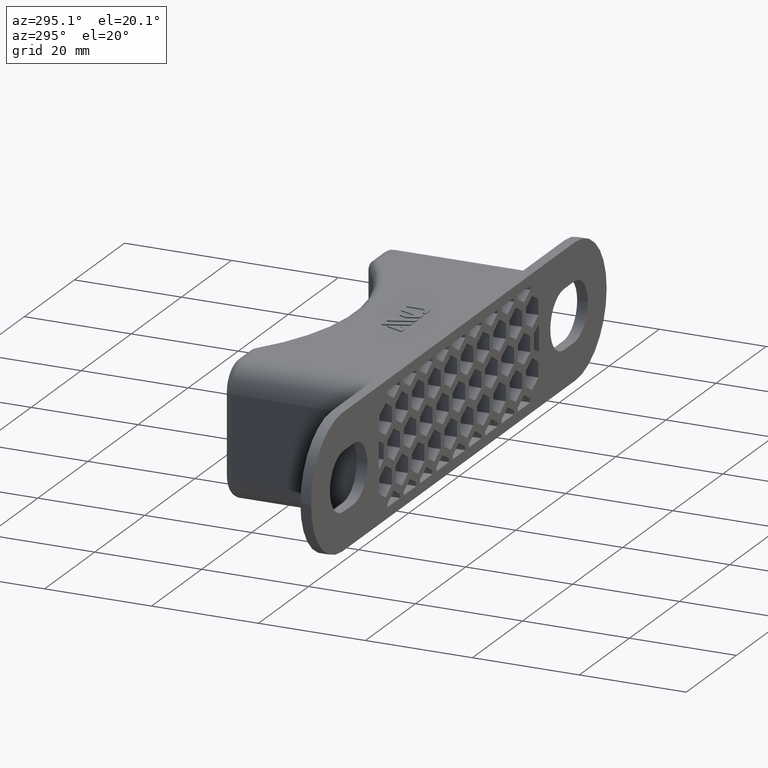
[diagram: clean part render]
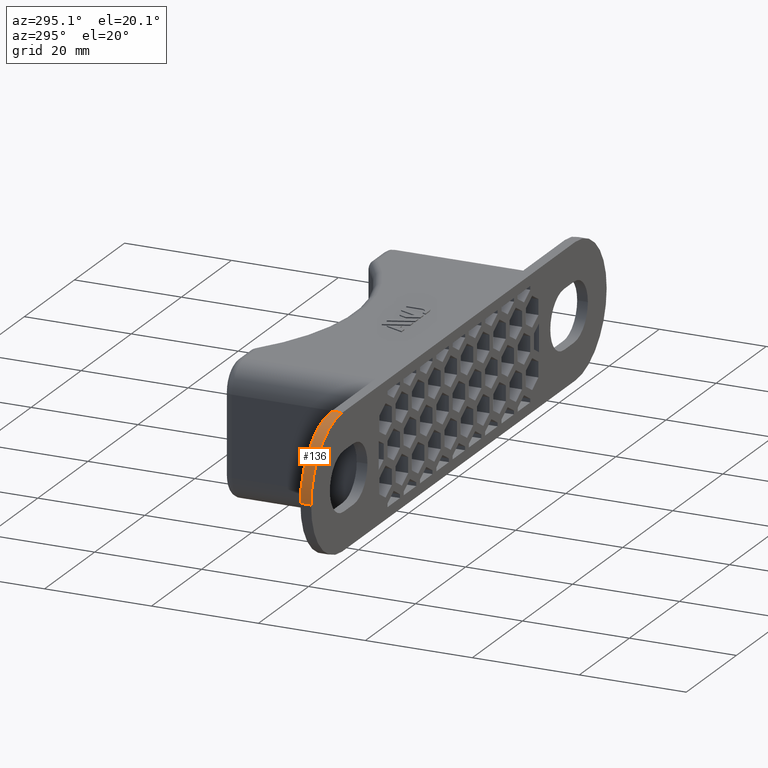
[diagram: same view with one face highlighted and labeled with its STEP entity id]
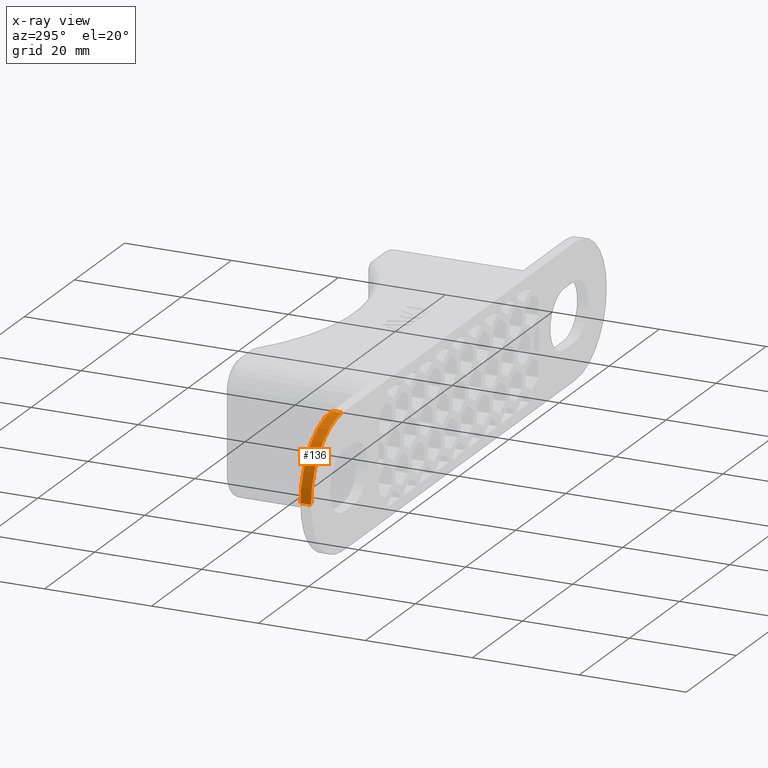
[diagram: x-ray of the same camera — body ghosted, the highlighted face saturated]
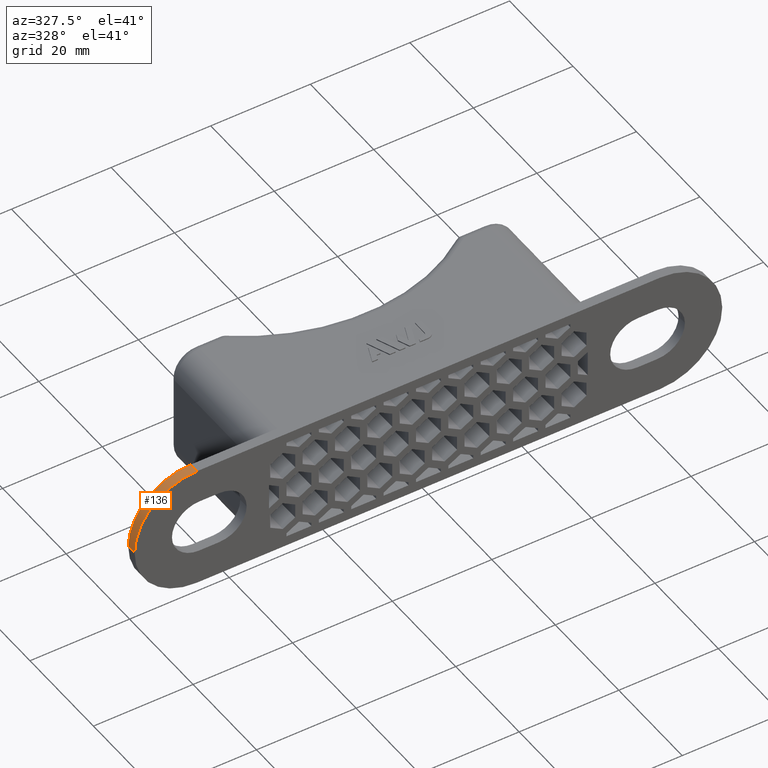
[diagram: same view with one face highlighted and labeled with its STEP entity id]
A machine part, auxiliary view. The second image highlights one B-rep face of the part: STEP entity #136.
The next image is the same camera in x-ray: the body ghosted, the highlighted face saturated — about 0% of this face is hidden behind the body in this view.
A second angle (auxiliary view) of the same face is appended — the face is thin or edge-on in the first view.
In plain terms, the highlighted cylindrical surface (partial cylindrical patch) has radius 12.5 mm, axis along (-0, -1, 0).
Its self-contained STEP definition (entity closure, byte-faithful):
#136 = ADVANCED_FACE( '', ( #668 ), #669, .T. );
#668 = FACE_OUTER_BOUND( '', #1550, .T. );
#669 = CYLINDRICAL_SURFACE( '', #1551, 12.5000000000000 );
#1550 = EDGE_LOOP( '', ( #3051, #3052, #3053, #3054 ) );
#1551 = AXIS2_PLACEMENT_3D( '', #3055, #3056, #3057 );
#3051 = ORIENTED_EDGE( '', *, *, #5960, .F. );
#3052 = ORIENTED_EDGE( '', *, *, #5947, .T. );
#3053 = ORIENTED_EDGE( '', *, *, #5794, .F. );
#3054 = ORIENTED_EDGE( '', *, *, #5599, .F. );
#3055 = CARTESIAN_POINT( '', ( -46.5000000000000, 58.6500000000000, 0.000000000000000 ) );
#3056 = DIRECTION( '', ( -6.93889390390723E-017, -1.00000000000000, 0.000000000000000 ) );
#3057 = DIRECTION( '', ( -1.00000000000000, 6.93889390390723E-017, 0.000000000000000 ) );
#5599 = EDGE_CURVE( '', #6661, #6663, #6664, .T. );
#5794 = EDGE_CURVE( '', #6663, #7052, #7053, .T. );
#5947 = EDGE_CURVE( '', #7344, #7052, #7345, .T. );
#5960 = EDGE_CURVE( '', #7344, #6661, #7366, .T. );
#6661 = VERTEX_POINT( '', #8414 );
#6663 = VERTEX_POINT( '', #8417 );
#6664 = LINE( '', #8418, #8419 );
#7052 = VERTEX_POINT( '', #8995 );
#7053 = CIRCLE( '', #8996, 12.5000000000000 );
#7344 = VERTEX_POINT( '', #9419 );
#7345 = LINE( '', #9420, #9421 );
#7366 = CIRCLE( '', #9452, 12.5000000000000 );
#8414 = CARTESIAN_POINT( '', ( -46.5000000000000, 2.00000000000000, 12.5000000000000 ) );
#8417 = CARTESIAN_POINT( '', ( -46.5000000000000, 0.000000000000000, 12.5000000000000 ) );
#8418 = CARTESIAN_POINT( '', ( -46.5000000000000, 0.000000000000000, 12.5000000000000 ) );
#8419 = VECTOR( '', #10967, 1000.00000000000 );
#8995 = CARTESIAN_POINT( '', ( -59.0000000000000, 0.000000000000000, 0.000000000000000 ) );
#8996 = AXIS2_PLACEMENT_3D( '', #11174, #11175, #11176 );
#9419 = CARTESIAN_POINT( '', ( -59.0000000000000, 2.00000000000000, 0.000000000000000 ) );
#9420 = CARTESIAN_POINT( '', ( -59.0000000000000, 2.00000000000000, 0.000000000000000 ) );
#9421 = VECTOR( '', #11369, 1000.00000000000 );
#9452 = AXIS2_PLACEMENT_3D( '', #11386, #11387, #11388 );
#10967 = DIRECTION( '', ( -6.93889390390723E-017, -1.00000000000000, 0.000000000000000 ) );
#11174 = CARTESIAN_POINT( '', ( -46.5000000000000, 0.000000000000000, 0.000000000000000 ) );
#11175 = DIRECTION( '', ( 0.000000000000000, -1.00000000000000, 0.000000000000000 ) );
#11176 = DIRECTION( '', ( 0.000000000000000, 0.000000000000000, -1.00000000000000 ) );
#11369 = DIRECTION( '', ( -6.93889390390723E-017, -1.00000000000000, 0.000000000000000 ) );
#11386 = CARTESIAN_POINT( '', ( -46.5000000000000, 2.00000000000000, 0.000000000000000 ) );
#11387 = DIRECTION( '', ( 0.000000000000000, 1.00000000000000, 0.000000000000000 ) );
#11388 = DIRECTION( '', ( 0.000000000000000, 0.000000000000000, 1.00000000000000 ) );